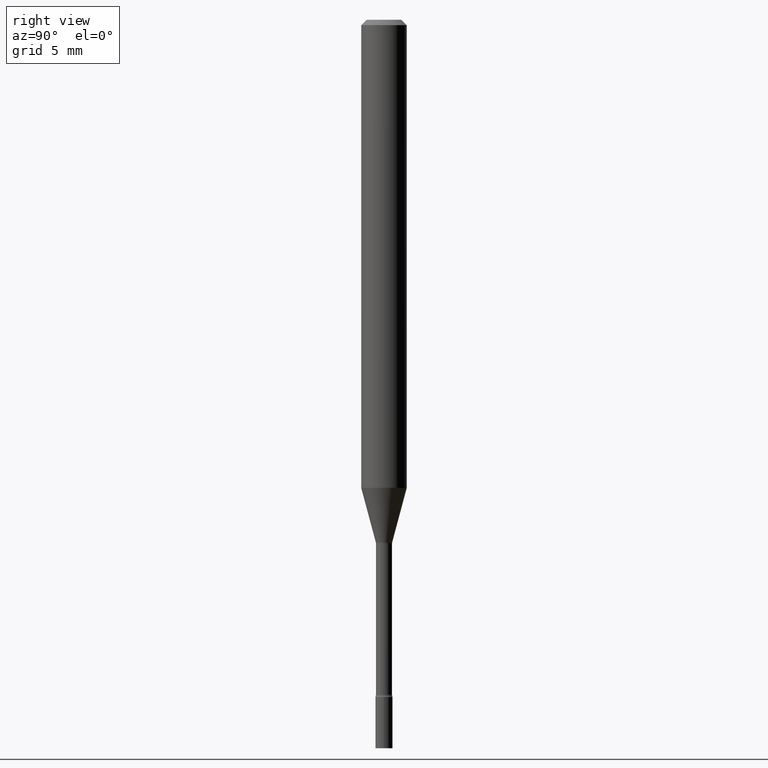
[diagram: clean part render]
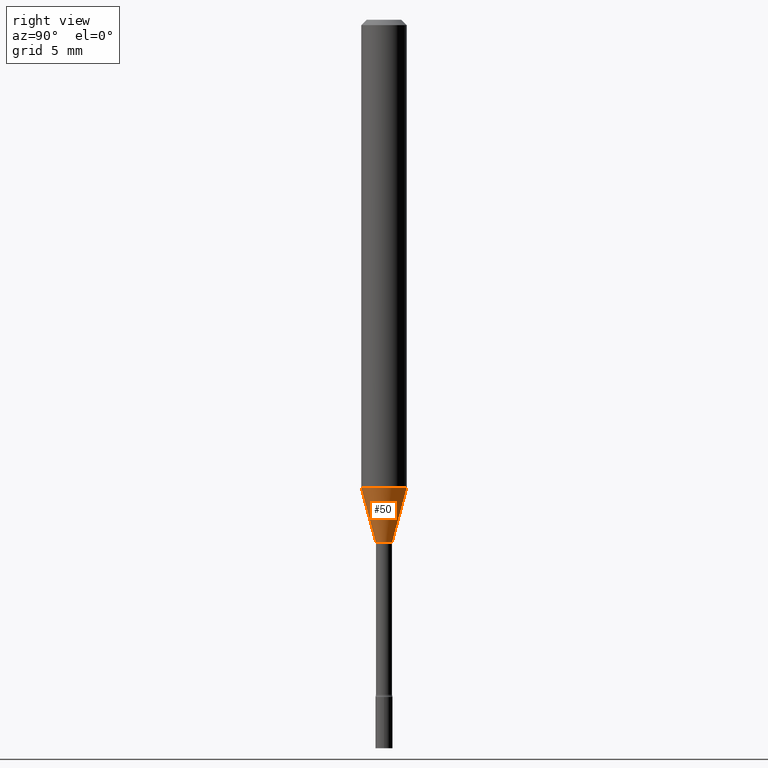
[diagram: same view with one face highlighted and labeled with its STEP entity id]
A machine part, right view. The second image highlights one B-rep face of the part: STEP entity #50.
In plain terms, the highlighted conical surface has half-angle 15 deg.
Its self-contained STEP definition (entity closure, byte-faithful):
#6 = DIRECTION ( 'NONE',  ( -6.982962677686265922E-15, -1.000000000000000000, 0.000000000000000000 ) ) ;
#7 = DIRECTION ( 'NONE',  ( -6.982962677686265922E-15, -1.000000000000000000, 0.000000000000000000 ) ) ;
#12 = CIRCLE ( 'NONE', #518, 0.06250000000000000000 ) ;
#22 = CARTESIAN_POINT ( 'NONE',  ( -1.578925554262779717E-16, -0.02261111260566898637, -1.434092501787273211 ) ) ;
#41 = DIRECTION ( 'NONE',  ( -6.982962677686265922E-15, -1.000000000000000000, 4.370956789862821150E-15 ) ) ;
#49 = CARTESIAN_POINT ( 'NONE',  ( -1.578925554262779717E-16, -0.02261111260566898637, -1.434092501787273211 ) ) ;
#50 = ADVANCED_FACE ( 'NONE', ( #129 ), #202, .T. ) ;
#64 = ORIENTED_EDGE ( 'NONE', *, *, #421, .F. ) ;
#65 = VECTOR ( 'NONE', #206, 39.37007874015749564 ) ;
#66 = DIRECTION ( 'NONE',  ( -2.445478591985838029E-29, 3.491467325019567696E-15, 1.000000000000000000 ) ) ;
#98 = AXIS2_PLACEMENT_3D ( 'NONE', #370, #288, #7 ) ;
#105 = CARTESIAN_POINT ( 'NONE',  ( -4.364351673553603615E-16, -0.06250000000000451028, -1.285225147374217780 ) ) ;
#129 = FACE_OUTER_BOUND ( 'NONE', #305, .T. ) ;
#164 = LINE ( 'NONE', #320, #409 ) ;
#179 = CARTESIAN_POINT ( 'NONE',  ( 4.440892098500937762E-16, 0.06249999999999548278, -1.285225147374218224 ) ) ;
#193 = ORIENTED_EDGE ( 'NONE', *, *, #220, .F. ) ;
#202 = CONICAL_SURFACE ( 'NONE', #98, 0.02261111260566397996, 0.2617993877991501850 ) ;
#203 = CIRCLE ( 'NONE', #498, 0.02261111260566397996 ) ;
#206 = DIRECTION ( 'NONE',  ( -1.807323732225329350E-15, -0.2588190451025180194, 0.9659258262890689783 ) ) ;
#220 = EDGE_CURVE ( 'NONE', #462, #509, #12, .T. ) ;
#238 = ORIENTED_EDGE ( 'NONE', *, *, #381, .T. ) ;
#287 = CARTESIAN_POINT ( 'NONE',  ( 3.507042512048188960E-29, -5.007087111045831166E-15, -1.434092501787273211 ) ) ;
#288 = DIRECTION ( 'NONE',  ( -2.445478591985838029E-29, 3.491467325019567696E-15, 1.000000000000000000 ) ) ;
#305 = EDGE_LOOP ( 'NONE', ( #335, #238, #193, #64 ) ) ;
#320 = CARTESIAN_POINT ( 'NONE',  ( 1.606616180941167474E-16, 0.02261111260565897355, -1.434092501787273211 ) ) ;
#335 = ORIENTED_EDGE ( 'NONE', *, *, #440, .T. ) ;
#365 = CARTESIAN_POINT ( 'NONE',  ( 3.023754139721054960E-16, 0.02261111260565897702, -1.434092501787273211 ) ) ;
#370 = CARTESIAN_POINT ( 'NONE',  ( 3.507042512048188960E-29, -5.007087111045831166E-15, -1.434092501787273211 ) ) ;
#381 = EDGE_CURVE ( 'NONE', #422, #509, #164, .T. ) ;
#405 = LINE ( 'NONE', #49, #65 ) ;
#409 = VECTOR ( 'NONE', #448, 39.37007874015748143 ) ;
#421 = EDGE_CURVE ( 'NONE', #513, #462, #405, .T. ) ;
#422 = VERTEX_POINT ( 'NONE', #365 ) ;
#440 = EDGE_CURVE ( 'NONE', #513, #422, #203, .T. ) ;
#448 = DIRECTION ( 'NONE',  ( 1.839019923739599526E-15, 0.2588190451025248473, 0.9659258262890670910 ) ) ;
#451 = DIRECTION ( 'NONE',  ( -2.445478591985838029E-29, 3.491467325019567696E-15, 1.000000000000000000 ) ) ;
#462 = VERTEX_POINT ( 'NONE', #105 ) ;
#498 = AXIS2_PLACEMENT_3D ( 'NONE', #287, #451, #6 ) ;
#509 = VERTEX_POINT ( 'NONE', #179 ) ;
#513 = VERTEX_POINT ( 'NONE', #22 ) ;
#514 = CARTESIAN_POINT ( 'NONE',  ( 3.142990583785493865E-29, -4.487321607350540658E-15, -1.285225147374218002 ) ) ;
#518 = AXIS2_PLACEMENT_3D ( 'NONE', #514, #66, #41 ) ;